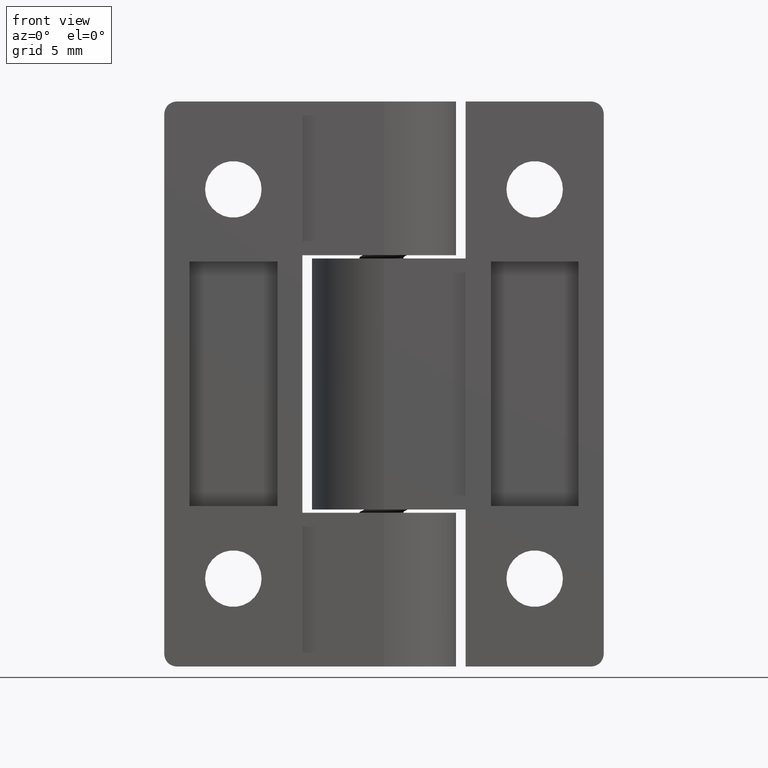
[diagram: clean part render]
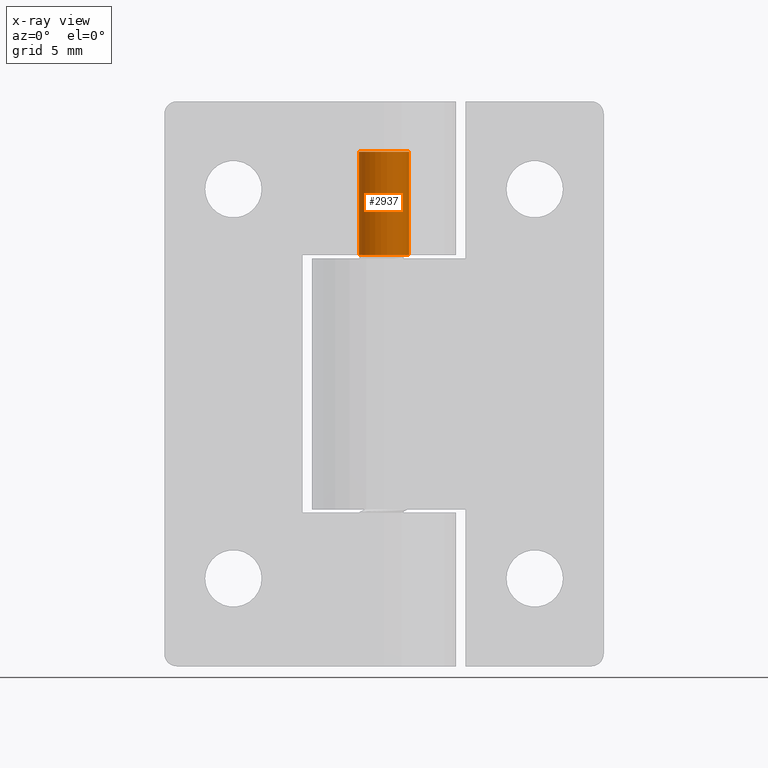
[diagram: x-ray — body ghosted, one internal face saturated and labeled with its STEP entity id]
A machine part, front view, then the same camera in x-ray: the body is ghosted and one INTERNAL B-rep face — a face not visible from any outside direction — is saturated and labeled: STEP entity #2937.
In plain terms, the highlighted cylindrical surface (bore or boss wall) has radius 2 mm, axis along (0, 0, 1).
Its self-contained STEP definition (entity closure, byte-faithful):
#321=FACE_BOUND('',#581,.T.);
#449=FACE_OUTER_BOUND('',#580,.T.);
#580=EDGE_LOOP('',(#2109));
#581=EDGE_LOOP('',(#2110));
#999=CIRCLE('',#3035,2.);
#1021=CIRCLE('',#3088,2.);
#1085=VERTEX_POINT('',#3789);
#1139=VERTEX_POINT('',#3983);
#1479=EDGE_CURVE('',#1085,#1085,#999,.T.);
#1556=EDGE_CURVE('',#1139,#1139,#1021,.T.);
#2109=ORIENTED_EDGE('',*,*,#1479,.T.);
#2110=ORIENTED_EDGE('',*,*,#1556,.F.);
#2882=CYLINDRICAL_SURFACE('',#3087,2.);
#2937=ADVANCED_FACE('',(#449,#321),#2882,.F.);
#3035=AXIS2_PLACEMENT_3D('',#3790,#3255,#3256);
#3087=AXIS2_PLACEMENT_3D('',#3982,#3412,#3413);
#3088=AXIS2_PLACEMENT_3D('',#3984,#3414,#3415);
#3255=DIRECTION('center_axis',(0.,1.,0.));
#3256=DIRECTION('ref_axis',(1.,0.,0.));
#3412=DIRECTION('center_axis',(0.,-1.,0.));
#3413=DIRECTION('ref_axis',(1.,0.,0.));
#3414=DIRECTION('center_axis',(0.,1.,0.));
#3415=DIRECTION('ref_axis',(1.,0.,0.));
#3789=CARTESIAN_POINT('',(15.5,-10.25,6.25));
#3790=CARTESIAN_POINT('Origin',(17.5,-10.25,6.25));
#3982=CARTESIAN_POINT('Origin',(17.5,0.,6.25));
#3983=CARTESIAN_POINT('',(15.5,-18.5,6.25));
#3984=CARTESIAN_POINT('Origin',(17.5,-18.5,6.25));